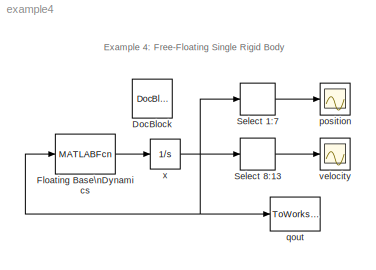
MODEL example4
KIND model
WORKSPACE source: external: M-Code  (data not in archive)
BLOCK [Reference] DocBlock  REF=simulink/Model-Wide\nUtilities/DocBlock
  DocumentType = Text
  FunctionWithSeparateData = off
  Ports = []
  RTWMemSecDataConstants = Inherit from model
  RTWMemSecDataInternal = Inherit from model
  RTWMemSecDataParameters = Inherit from model
  RTWMemSecFuncExecute = Inherit from model
  RTWMemSecFuncInitTerm = Inherit from model
  ShowPortLabels = FromPortIcon
  SourceBlock = simulink/Model-Wide\nUtilities/DocBlock
  SourceType = DocBlock
  SystemSampleTime = -1
  UserData = DataTag0
  UserDataPersistent = on
BLOCK [MATLABFcn] Floating Base\nDynamics
  MATLABFcn = FDfb( singlebody, u, [], [], [] )
  Output1D = off
  OutputDimensions = [13 1]
  OutputSignalType = real
  Ports = [1, 1]
BLOCK [Selector] Select 1:7
  IndexOptions = Index vector (dialog)
  Indices = [1 2 3 4 5 6 7]
  InputPortWidth = 13
  OutputSizes = 1
  Ports = [1, 1]
BLOCK [Selector] Select 8:13
  IndexOptions = Index vector (dialog)
  Indices = [8 9 10 11 12 13]
  InputPortWidth = 13
  OutputSizes = 1
  Ports = [1, 1]
BLOCK [Scope] position
  DataFormat = StructureWithTime
  Floating = off
  LimitDataPoints = off
  NumInputPorts = 1
  Ports = [1]
  SampleTime = 0
  SaveName = ScopeData1
  YMax = 4
  YMin = -2
BLOCK [ToWorkspace] qout
  MaxDataPoints = inf
  SampleTime = -1
  SaveFormat = Array
  VariableName = xout
BLOCK [Scope] velocity
  DataFormat = StructureWithTime
  Floating = off
  LimitDataPoints = off
  NumInputPorts = 1
  Ports = [1]
  SampleTime = 0
  YMax = 4
  YMin = -2
BLOCK [Integrator] x
  InitialCondition = x_init
  Ports = [1, 1]
ANNOTATION (root): Example 4: Free-Floating Single Rigid Body
LINE Floating Base\nDynamics:1 -> x:1
LINE Select 1:7:1 -> position:1
LINE Select 8:13:1 -> velocity:1
NET x:1 -> Floating Base\nDynamics:1, Select 1:7:1, Select 8:13:1, qout:1
note: NET lines group one-source signal fan-out (src -> all destinations, sorted); 1:1 wires keep LINE
